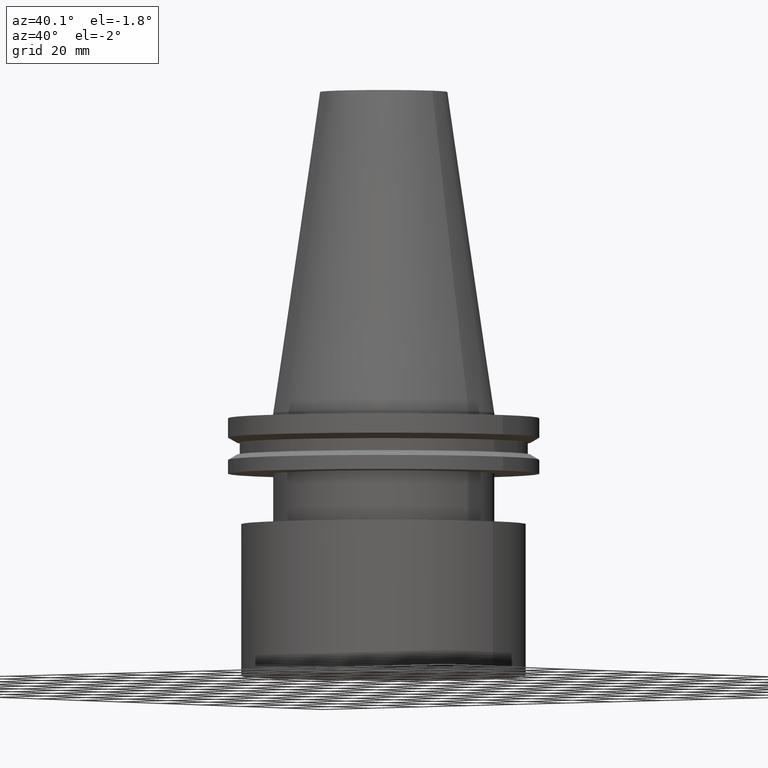
[diagram: clean part render]
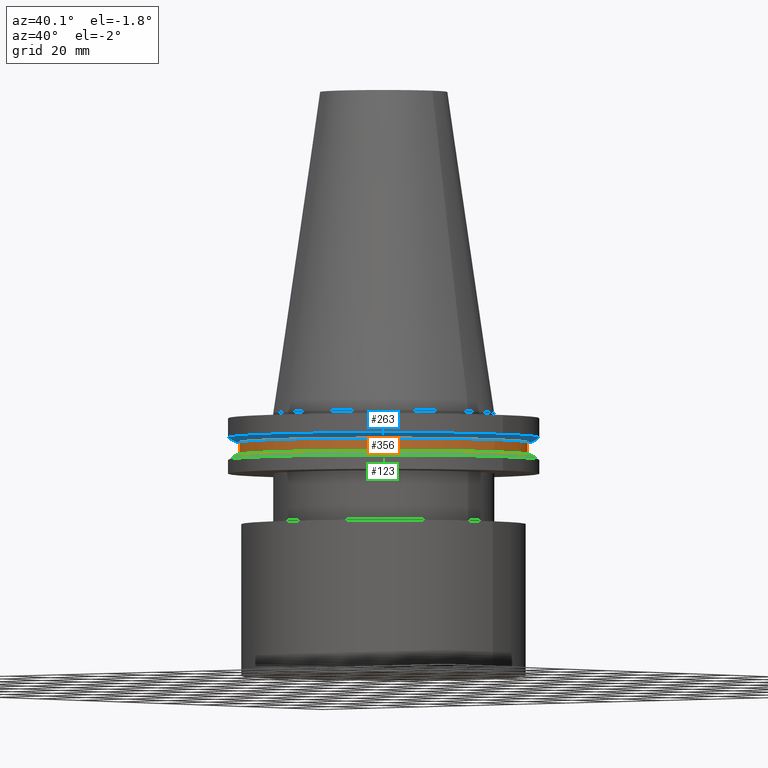
[diagram: same view with three faces highlighted in distinct colors, each labeled with its STEP entity id]
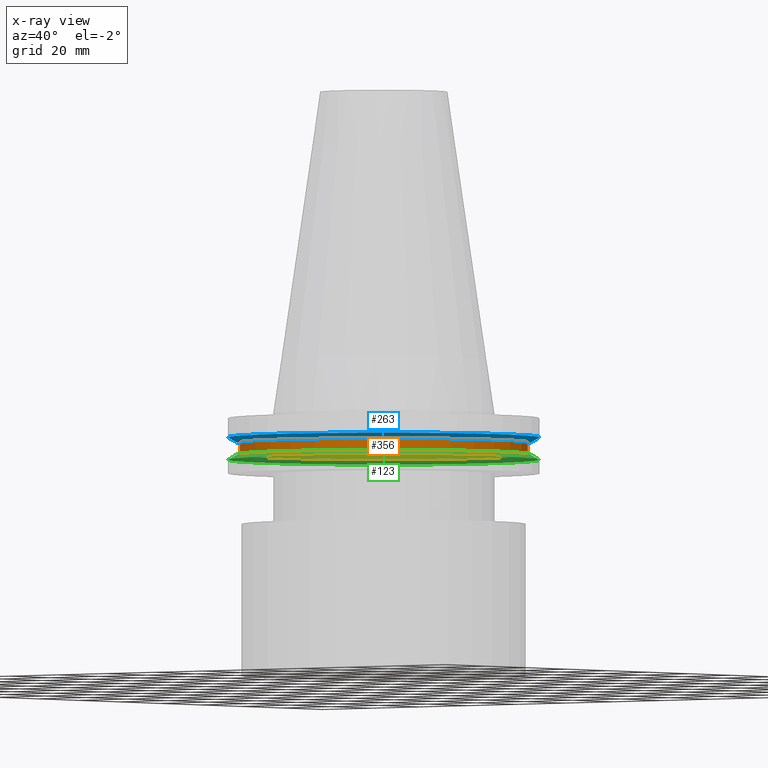
[diagram: x-ray of the same camera — body ghosted, the three highlighted faces saturated]
A machine part, auxiliary view with three faces highlighted in distinct colors.
The next image is the same camera in x-ray (body ghosted, the three faces saturated) — at least one of them is partly hidden behind the body in this view.
Their STEP definitions:

[orange] entity #356 — the highlighted cylindrical surface (bore or boss wall) has radius 45.645 mm, axis along (-0, -0, 1).
#2 = ORIENTED_EDGE ( 'NONE', *, *, #118, .F. ) ;
#14 = CARTESIAN_POINT ( 'NONE',  ( 45.64500000000000313, 0.000000000000000000, -13.05499999999999794 ) ) ;
#73 = EDGE_LOOP ( 'NONE', ( #2 ) ) ;
#84 = DIRECTION ( 'NONE',  ( 1.000000000000000000, 0.000000000000000000, 0.000000000000000000 ) ) ;
#89 = DIRECTION ( 'NONE',  ( 1.000000000000000000, 0.000000000000000000, 0.000000000000000000 ) ) ;
#95 = CYLINDRICAL_SURFACE ( 'NONE', #152, 45.64500000000000313 ) ;
#118 = EDGE_CURVE ( 'NONE', #136, #136, #296, .T. ) ;
#136 = VERTEX_POINT ( 'NONE', #281 ) ;
#152 = AXIS2_PLACEMENT_3D ( 'NONE', #247, #278, #89 ) ;
#155 = DIRECTION ( 'NONE',  ( 1.000000000000000000, 0.000000000000000000, 0.000000000000000000 ) ) ;
#162 = ORIENTED_EDGE ( 'NONE', *, *, #273, .T. ) ;
#176 = EDGE_LOOP ( 'NONE', ( #162 ) ) ;
#191 = VERTEX_POINT ( 'NONE', #14 ) ;
#243 = CARTESIAN_POINT ( 'NONE',  ( 0.000000000000000000, 0.000000000000000000, -9.204999999999991189 ) ) ;
#247 = CARTESIAN_POINT ( 'NONE',  ( 0.000000000000000000, 0.000000000000000000, 101.5999999999999943 ) ) ;
#273 = EDGE_CURVE ( 'NONE', #191, #191, #288, .T. ) ;
#275 = FACE_OUTER_BOUND ( 'NONE', #73, .T. ) ;
#278 = DIRECTION ( 'NONE',  ( -0.000000000000000000, -0.000000000000000000, 1.000000000000000000 ) ) ;
#281 = CARTESIAN_POINT ( 'NONE',  ( 45.64500000000000313, 0.000000000000000000, -9.204999999999991189 ) ) ;
#288 = CIRCLE ( 'NONE', #317, 45.64500000000000313 ) ;
#296 = CIRCLE ( 'NONE', #307, 45.64500000000000313 ) ;
#303 = CARTESIAN_POINT ( 'NONE',  ( 0.000000000000000000, 0.000000000000000000, -13.05499999999999794 ) ) ;
#307 = AXIS2_PLACEMENT_3D ( 'NONE', #243, #357, #84 ) ;
#317 = AXIS2_PLACEMENT_3D ( 'NONE', #303, #335, #155 ) ;
#335 = DIRECTION ( 'NONE',  ( -0.000000000000000000, -0.000000000000000000, 1.000000000000000000 ) ) ;
#356 = ADVANCED_FACE ( 'NONE', ( #275, #364 ), #95, .T. ) ;
#357 = DIRECTION ( 'NONE',  ( -0.000000000000000000, -0.000000000000000000, 1.000000000000000000 ) ) ;
#364 = FACE_OUTER_BOUND ( 'NONE', #176, .T. ) ;

[blue] entity #263 — the highlighted conical surface has half-angle 60 deg.
#16 = DIRECTION ( 'NONE',  ( 1.000000000000000000, 0.000000000000000000, 0.000000000000000000 ) ) ;
#28 = EDGE_CURVE ( 'NONE', #225, #225, #177, .T. ) ;
#33 = CARTESIAN_POINT ( 'NONE',  ( 0.000000000000000000, 0.000000000000000000, -9.204999999999991189 ) ) ;
#35 = EDGE_CURVE ( 'NONE', #252, #252, #54, .T. ) ;
#38 = EDGE_LOOP ( 'NONE', ( #311 ) ) ;
#41 = AXIS2_PLACEMENT_3D ( 'NONE', #144, #149, #50 ) ;
#50 = DIRECTION ( 'NONE',  ( 1.000000000000000000, 0.000000000000000000, 0.000000000000000000 ) ) ;
#54 = CIRCLE ( 'NONE', #41, 49.21500000000000341 ) ;
#128 = EDGE_LOOP ( 'NONE', ( #190 ) ) ;
#129 = CARTESIAN_POINT ( 'NONE',  ( 46.43919780457007818, 0.000000000000000000, -9.204999999999991189 ) ) ;
#144 = CARTESIAN_POINT ( 'NONE',  ( 0.000000000000000000, 0.000000000000000000, -7.602389855251287187 ) ) ;
#149 = DIRECTION ( 'NONE',  ( -0.000000000000000000, -0.000000000000000000, 1.000000000000000000 ) ) ;
#177 = CIRCLE ( 'NONE', #249, 46.43919780457007818 ) ;
#186 = FACE_BOUND ( 'NONE', #128, .T. ) ;
#187 = CONICAL_SURFACE ( 'NONE', #282, 46.43919780457007818, 1.047197551196575205 ) ;
#190 = ORIENTED_EDGE ( 'NONE', *, *, #28, .T. ) ;
#225 = VERTEX_POINT ( 'NONE', #129 ) ;
#241 = DIRECTION ( 'NONE',  ( -0.000000000000000000, -0.000000000000000000, 1.000000000000000000 ) ) ;
#249 = AXIS2_PLACEMENT_3D ( 'NONE', #295, #241, #16 ) ;
#252 = VERTEX_POINT ( 'NONE', #302 ) ;
#263 = ADVANCED_FACE ( 'NONE', ( #306, #186 ), #187, .T. ) ;
#282 = AXIS2_PLACEMENT_3D ( 'NONE', #33, #304, #365 ) ;
#295 = CARTESIAN_POINT ( 'NONE',  ( 0.000000000000000000, 0.000000000000000000, -9.204999999999991189 ) ) ;
#302 = CARTESIAN_POINT ( 'NONE',  ( 49.21500000000000341, 0.000000000000000000, -7.602389855251287187 ) ) ;
#304 = DIRECTION ( 'NONE',  ( -0.000000000000000000, -0.000000000000000000, 1.000000000000000000 ) ) ;
#306 = FACE_OUTER_BOUND ( 'NONE', #38, .T. ) ;
#311 = ORIENTED_EDGE ( 'NONE', *, *, #35, .F. ) ;
#365 = DIRECTION ( 'NONE',  ( 1.000000000000000000, 0.000000000000000000, 0.000000000000000000 ) ) ;

[green] entity #123 — the highlighted conical surface has half-angle 60 deg.
#7 = ORIENTED_EDGE ( 'NONE', *, *, #69, .T. ) ;
#24 = CARTESIAN_POINT ( 'NONE',  ( 0.000000000000000000, 0.000000000000000000, -13.05499999999999794 ) ) ;
#69 = EDGE_CURVE ( 'NONE', #349, #349, #203, .T. ) ;
#71 = AXIS2_PLACEMENT_3D ( 'NONE', #24, #388, #115 ) ;
#76 = FACE_OUTER_BOUND ( 'NONE', #346, .T. ) ;
#98 = VERTEX_POINT ( 'NONE', #160 ) ;
#107 = EDGE_CURVE ( 'NONE', #98, #98, #301, .T. ) ;
#115 = DIRECTION ( 'NONE',  ( 1.000000000000000000, 0.000000000000000000, 0.000000000000000000 ) ) ;
#123 = ADVANCED_FACE ( 'NONE', ( #142, #76 ), #393, .T. ) ;
#139 = AXIS2_PLACEMENT_3D ( 'NONE', #379, #202, #272 ) ;
#142 = FACE_BOUND ( 'NONE', #342, .T. ) ;
#160 = CARTESIAN_POINT ( 'NONE',  ( 46.43919780457007818, 0.000000000000000000, -13.05499999999999794 ) ) ;
#174 = DIRECTION ( 'NONE',  ( -0.000000000000000000, -0.000000000000000000, 1.000000000000000000 ) ) ;
#202 = DIRECTION ( 'NONE',  ( 0.000000000000000000, 0.000000000000000000, -1.000000000000000000 ) ) ;
#203 = CIRCLE ( 'NONE', #351, 49.21499999999998920 ) ;
#257 = CARTESIAN_POINT ( 'NONE',  ( 49.21499999999998920, 0.000000000000000000, -14.65761014474876944 ) ) ;
#261 = CARTESIAN_POINT ( 'NONE',  ( 0.000000000000000000, 0.000000000000000000, -14.65761014474876944 ) ) ;
#272 = DIRECTION ( 'NONE',  ( -1.000000000000000000, 0.000000000000000000, 0.000000000000000000 ) ) ;
#285 = ORIENTED_EDGE ( 'NONE', *, *, #107, .F. ) ;
#301 = CIRCLE ( 'NONE', #71, 46.43919780457007818 ) ;
#326 = DIRECTION ( 'NONE',  ( 1.000000000000000000, 0.000000000000000000, 0.000000000000000000 ) ) ;
#342 = EDGE_LOOP ( 'NONE', ( #285 ) ) ;
#346 = EDGE_LOOP ( 'NONE', ( #7 ) ) ;
#349 = VERTEX_POINT ( 'NONE', #257 ) ;
#351 = AXIS2_PLACEMENT_3D ( 'NONE', #261, #174, #326 ) ;
#379 = CARTESIAN_POINT ( 'NONE',  ( 0.000000000000000000, 0.000000000000000000, -14.65761014474876944 ) ) ;
#388 = DIRECTION ( 'NONE',  ( -0.000000000000000000, -0.000000000000000000, 1.000000000000000000 ) ) ;
#393 = CONICAL_SURFACE ( 'NONE', #139, 49.21499999999998920, 1.047197551196554333 ) ;